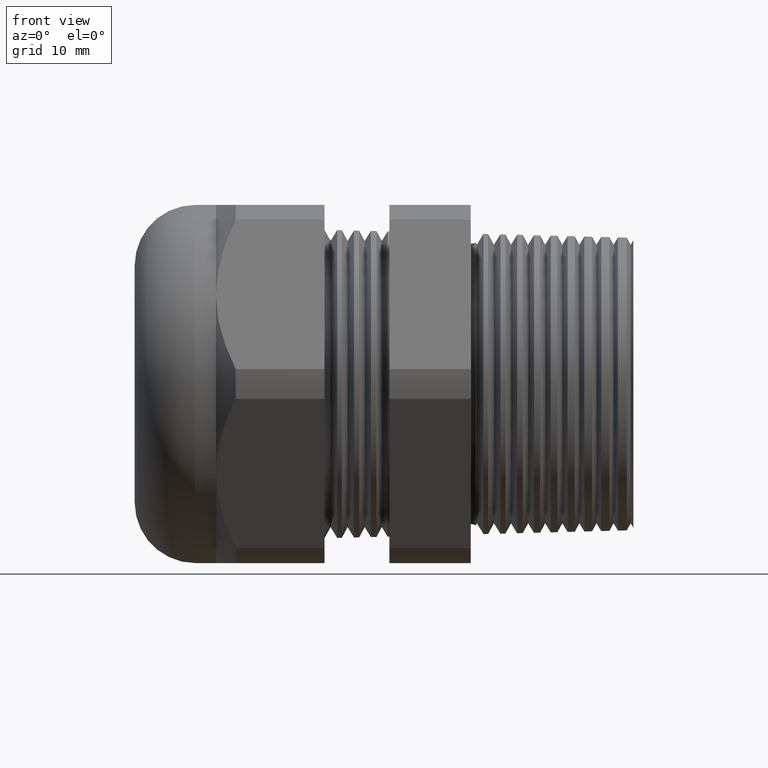
[diagram: clean part render]
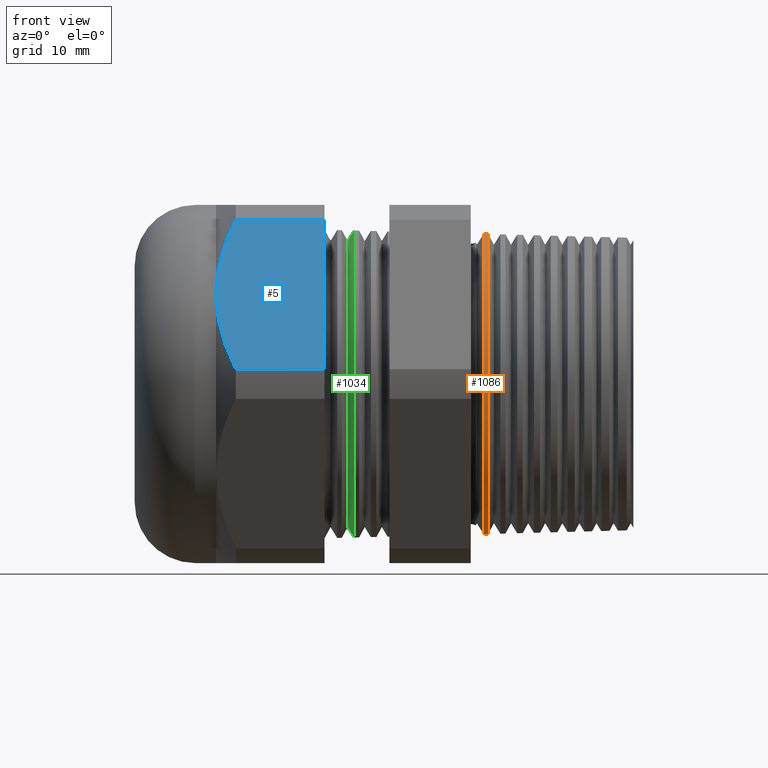
[diagram: same view with three faces highlighted in distinct colors, each labeled with its STEP entity id]
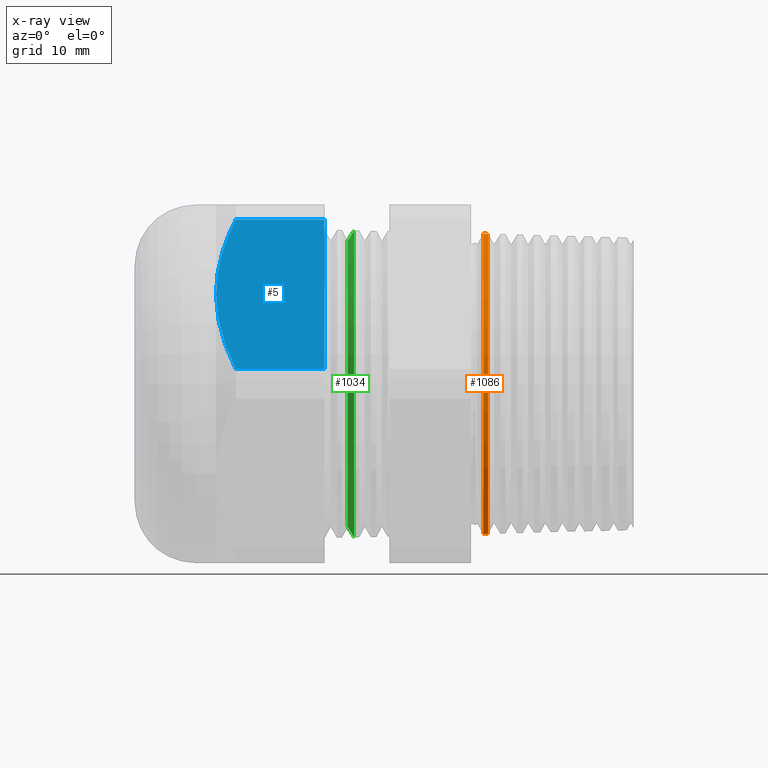
[diagram: x-ray of the same camera — body ghosted, the three highlighted faces saturated]
A machine part, front view with three faces highlighted in distinct colors.
The next image is the same camera in x-ray (body ghosted, the three faces saturated) — at least one of them is partly hidden behind the body in this view.
Their STEP definitions:

[orange] entity #1086 — the highlighted conical surface has half-angle 1.5 deg.
#119 = EDGE_CURVE ( 'NONE', #3682, #3669, #1441, .T. ) ;
#141 = EDGE_CURVE ( 'NONE', #3678, #3665, #1511, .T. ) ;
#1086 = ADVANCED_FACE ( 'NONE', ( #2933 ), #2988, .T. ) ;
#1087 = EDGE_LOOP ( 'NONE', ( #1088, #1089, #1141, #1142 ) ) ;
#1088 = ORIENTED_EDGE ( 'NONE', *, *, #119, .F. ) ;
#1089 = ORIENTED_EDGE ( 'NONE', *, *, #1090, .F. ) ;
#1090 = EDGE_CURVE ( 'NONE', #3678, #3682, #2984, .T. ) ;
#1141 = ORIENTED_EDGE ( 'NONE', *, *, #141, .T. ) ;
#1142 = ORIENTED_EDGE ( 'NONE', *, *, #1143, .T. ) ;
#1143 = EDGE_CURVE ( 'NONE', #3665, #3669, #3051, .T. ) ;
#1440 = CARTESIAN_POINT ( 'NONE',  ( 0.2799999999999999700, 6.498526558574343300E-017, -0.5306449633558729700 ) ) ;
#1441 = LINE ( 'NONE', #1440, #1502 ) ;
#1501 = DIRECTION ( 'NONE',  ( -0.9996573249755573700, 3.205751595667399200E-018, -0.02617694830786614100 ) ) ;
#1502 = VECTOR ( 'NONE', #1501, 39.37007874015748100 ) ;
#1508 = DIRECTION ( 'NONE',  ( -0.9996573249755573700, 0.0000000000000000000, 0.02617694830786614100 ) ) ;
#1509 = VECTOR ( 'NONE', #1508, 39.37007874015748100 ) ;
#1510 = CARTESIAN_POINT ( 'NONE',  ( 0.2799999999999999700, 0.0000000000000000000, 0.5306449633558729700 ) ) ;
#1511 = LINE ( 'NONE', #1510, #1509 ) ;
#2927 = CARTESIAN_POINT ( 'NONE',  ( 0.2799999999999999700, 0.0000000000000000000, 0.0000000000000000000 ) ) ;
#2933 = FACE_OUTER_BOUND ( 'NONE', #1087, .T. ) ;
#2981 = DIRECTION ( 'NONE',  ( 0.0000000000000000000, 0.0000000000000000000, 1.000000000000000000 ) ) ;
#2982 = DIRECTION ( 'NONE',  ( 1.000000000000000000, 0.0000000000000000000, 0.0000000000000000000 ) ) ;
#2983 = AXIS2_PLACEMENT_3D ( 'NONE', #2989, #2982, #2981 ) ;
#2984 = CIRCLE ( 'NONE', #2983, 0.5444477140453289900 ) ;
#2985 = DIRECTION ( 'NONE',  ( 0.0000000000000000000, 0.0000000000000000000, 1.000000000000000000 ) ) ;
#2986 = DIRECTION ( 'NONE',  ( -1.000000000000000000, 0.0000000000000000000, 0.0000000000000000000 ) ) ;
#2987 = AXIS2_PLACEMENT_3D ( 'NONE', #2927, #2986, #2985 ) ;
#2988 = CONICAL_SURFACE ( 'NONE', #2987, 0.5306449633558729700, 0.02617993877990793000 ) ;
#2989 = CARTESIAN_POINT ( 'NONE',  ( -0.2471057828914283200, 0.0000000000000000000, 0.0000000000000000000 ) ) ;
#3047 = DIRECTION ( 'NONE',  ( 0.0000000000000000000, 0.0000000000000000000, -1.000000000000000000 ) ) ;
#3048 = DIRECTION ( 'NONE',  ( 1.000000000000000000, 0.0000000000000000000, 0.0000000000000000000 ) ) ;
#3049 = CARTESIAN_POINT ( 'NONE',  ( -0.2638278059462386700, 0.0000000000000000000, 0.0000000000000000000 ) ) ;
#3050 = AXIS2_PLACEMENT_3D ( 'NONE', #3049, #3048, #3047 ) ;
#3051 = CIRCLE ( 'NONE', #3050, 0.5448855956295204400 ) ;
#3256 = CARTESIAN_POINT ( 'NONE',  ( -0.2638278059462386700, 6.672924005891911200E-017, -0.5448855956295204400 ) ) ;
#3263 = CARTESIAN_POINT ( 'NONE',  ( -0.2638278059462386700, 0.0000000000000000000, 0.5448855956295204400 ) ) ;
#3292 = CARTESIAN_POINT ( 'NONE',  ( -0.2471057828914283200, 6.670242754489484900E-017, -0.5444477140453289900 ) ) ;
#3302 = CARTESIAN_POINT ( 'NONE',  ( -0.2471057828914283200, 0.0000000000000000000, 0.5444477140453289900 ) ) ;
#3665 = VERTEX_POINT ( 'NONE', #3263 ) ;
#3669 = VERTEX_POINT ( 'NONE', #3256 ) ;
#3678 = VERTEX_POINT ( 'NONE', #3302 ) ;
#3682 = VERTEX_POINT ( 'NONE', #3292 ) ;

[blue] entity #5 — the highlighted planar face has unit normal (0, -0.866, 0.5).
#4 = ORIENTED_EDGE ( 'NONE', *, *, #21, .T. ) ;
#5 = ADVANCED_FACE ( 'NONE', ( #1258 ), #1257, .T. ) ;
#13 = ORIENTED_EDGE ( 'NONE', *, *, #53, .F. ) ;
#21 = EDGE_CURVE ( 'NONE', #38, #50, #1316, .T. ) ;
#23 = ORIENTED_EDGE ( 'NONE', *, *, #54, .T. ) ;
#30 = EDGE_LOOP ( 'NONE', ( #40, #23, #4, #13, #72 ) ) ;
#38 = VERTEX_POINT ( 'NONE', #1345 ) ;
#40 = ORIENTED_EDGE ( 'NONE', *, *, #43, .T. ) ;
#43 = EDGE_CURVE ( 'NONE', #47, #52, #1334, .T. ) ;
#47 = VERTEX_POINT ( 'NONE', #1326 ) ;
#48 = VERTEX_POINT ( 'NONE', #1325 ) ;
#50 = VERTEX_POINT ( 'NONE', #1323 ) ;
#52 = VERTEX_POINT ( 'NONE', #1322 ) ;
#53 = EDGE_CURVE ( 'NONE', #48, #50, #1320, .T. ) ;
#54 = EDGE_CURVE ( 'NONE', #52, #38, #1376, .T. ) ;
#71 = EDGE_CURVE ( 'NONE', #47, #48, #1395, .T. ) ;
#72 = ORIENTED_EDGE ( 'NONE', *, *, #71, .F. ) ;
#1253 = DIRECTION ( 'NONE',  ( 0.0000000000000000000, -0.4999999999999996100, -0.8660254037844388200 ) ) ;
#1254 = DIRECTION ( 'NONE',  ( 0.0000000000000000000, -0.8660254037844388200, 0.4999999999999996100 ) ) ;
#1255 = CARTESIAN_POINT ( 'NONE',  ( 0.2800000000000000300, -0.7194909755756819800, 0.05380507471562046700 ) ) ;
#1256 = AXIS2_PLACEMENT_3D ( 'NONE', #1255, #1254, #1253 ) ;
#1257 = PLANE ( 'NONE',  #1256 ) ;
#1258 = FACE_OUTER_BOUND ( 'NONE', #30, .T. ) ;
#1309 = CARTESIAN_POINT ( 'NONE',  ( -1.163224409448818900, -0.7194909755756820900, 0.05380507471562026600 ) ) ;
#1310 = CARTESIAN_POINT ( 'NONE',  ( -1.184872741445236900, -0.6945519286446000300, 0.09700077109259905300 ) ) ;
#1311 = CARTESIAN_POINT ( 'NONE',  ( -1.202996499520028200, -0.6687756690813084800, 0.1416465622853033700 ) ) ;
#1312 = CARTESIAN_POINT ( 'NONE',  ( -1.227884653074518000, -0.6165592345672921100, 0.2320880798536728900 ) ) ;
#1313 = CARTESIAN_POINT ( 'NONE',  ( -1.234724409448818300, -0.5900081318517967900, 0.2780759387538905300 ) ) ;
#1314 = CARTESIAN_POINT ( 'NONE',  ( -1.234724409448819000, -0.5629165124598852800, 0.3249999999999997900 ) ) ;
#1316 = B_SPLINE_CURVE_WITH_KNOTS ( 'NONE', 3,
 ( #1314, #1313, #1312, #1311, #1310, #1309 ),
 .UNSPECIFIED., .F., .F.,
 ( 4, 2, 4 ),
 ( 0.008163776578903781900, 0.01224274182034620200, 0.01632170706178862100 ),
 .UNSPECIFIED. ) ;
#1317 = DIRECTION ( 'NONE',  ( -1.000000000000000000, 0.0000000000000000000, 0.0000000000000000000 ) ) ;
#1318 = VECTOR ( 'NONE', #1317, 39.37007874015748100 ) ;
#1319 = CARTESIAN_POINT ( 'NONE',  ( 0.2800000000000000300, -0.7194909755756820900, 0.05380507471562026600 ) ) ;
#1320 = LINE ( 'NONE', #1319, #1318 ) ;
#1322 = CARTESIAN_POINT ( 'NONE',  ( -1.163224409448819100, -0.4063420493440885700, 0.5961949252843791200 ) ) ;
#1323 = CARTESIAN_POINT ( 'NONE',  ( -1.163224409448818900, -0.7194909755756820900, 0.05380507471562026600 ) ) ;
#1325 = CARTESIAN_POINT ( 'NONE',  ( -0.8410236220472443500, -0.7194909755756820900, 0.05380507471562026600 ) ) ;
#1326 = CARTESIAN_POINT ( 'NONE',  ( -0.8410236220472443500, -0.4063420493440885700, 0.5961949252843791200 ) ) ;
#1331 = DIRECTION ( 'NONE',  ( -1.000000000000000000, 0.0000000000000000000, 0.0000000000000000000 ) ) ;
#1332 = VECTOR ( 'NONE', #1331, 39.37007874015748100 ) ;
#1333 = CARTESIAN_POINT ( 'NONE',  ( 0.2800000000000000300, -0.4063420493440885700, 0.5961949252843791200 ) ) ;
#1334 = LINE ( 'NONE', #1333, #1332 ) ;
#1345 = CARTESIAN_POINT ( 'NONE',  ( -1.234724409448819000, -0.5629165124598852800, 0.3249999999999997900 ) ) ;
#1364 = CARTESIAN_POINT ( 'NONE',  ( -1.234724409448819000, -0.5629165124598852800, 0.3249999999999997900 ) ) ;
#1365 = CARTESIAN_POINT ( 'NONE',  ( -1.234724409448819200, -0.5561389602113053800, 0.3367390648454930400 ) ) ;
#1366 = CARTESIAN_POINT ( 'NONE',  ( -1.234295499348922600, -0.5492994181763347600, 0.3485854991505648600 ) ) ;
#1367 = CARTESIAN_POINT ( 'NONE',  ( -1.232591953151822800, -0.5357104722797961800, 0.3721222438646742400 ) ) ;
#1368 = CARTESIAN_POINT ( 'NONE',  ( -1.231322888010232300, -0.5289679975772969600, 0.3838005526181506600 ) ) ;
#1369 = CARTESIAN_POINT ( 'NONE',  ( -1.226339375409179800, -0.5088871528993772500, 0.4185815958592073400 ) ) ;
#1370 = CARTESIAN_POINT ( 'NONE',  ( -1.221448244131501100, -0.4956954080403316300, 0.4414303681955596400 ) ) ;
#1371 = CARTESIAN_POINT ( 'NONE',  ( -1.202717682382704200, -0.4566257321431002000, 0.5091010318848138100 ) ) ;
#1372 = CARTESIAN_POINT ( 'NONE',  ( -1.184845972670086600, -0.4312502584378785100, 0.5530526416083857400 ) ) ;
#1373 = CARTESIAN_POINT ( 'NONE',  ( -1.163224409448819100, -0.4063420493440885700, 0.5961949252843791200 ) ) ;
#1376 = B_SPLINE_CURVE_WITH_KNOTS ( 'NONE', 3,
 ( #1373, #1372, #1371, #1370, #1369, #1368, #1367, #1366, #1365, #1364 ),
 .UNSPECIFIED., .F., .F.,
 ( 4, 2, 2, 2, 4 ),
 ( 2.483249165352349700E-007, 0.004082012451910162400, 0.006122894515406974300, 0.007143335547155378100, 0.008163776578903781900 ),
 .UNSPECIFIED. ) ;
#1392 = DIRECTION ( 'NONE',  ( 0.0000000000000000000, -0.4999999999999996100, -0.8660254037844388200 ) ) ;
#1393 = VECTOR ( 'NONE', #1392, 39.37007874015748100 ) ;
#1394 = CARTESIAN_POINT ( 'NONE',  ( -0.8410236220472443500, -0.4229165124598854900, 0.5674871130596425000 ) ) ;
#1395 = LINE ( 'NONE', #1394, #1393 ) ;

[green] entity #1034 — the highlighted conical surface has half-angle 58.5 deg.
#376 = VERTEX_POINT ( 'NONE', #1988 ) ;
#397 = VERTEX_POINT ( 'NONE', #2020 ) ;
#415 = EDGE_CURVE ( 'NONE', #720, #397, #2039, .T. ) ;
#419 = EDGE_CURVE ( 'NONE', #721, #376, #2095, .T. ) ;
#720 = VERTEX_POINT ( 'NONE', #2439 ) ;
#721 = VERTEX_POINT ( 'NONE', #2438 ) ;
#1033 = EDGE_CURVE ( 'NONE', #397, #376, #2869, .T. ) ;
#1034 = ADVANCED_FACE ( 'NONE', ( #2925 ), #2924, .T. ) ;
#1035 = EDGE_LOOP ( 'NONE', ( #1036, #1037, #1039, #1040 ) ) ;
#1036 = ORIENTED_EDGE ( 'NONE', *, *, #419, .F. ) ;
#1037 = ORIENTED_EDGE ( 'NONE', *, *, #1038, .T. ) ;
#1038 = EDGE_CURVE ( 'NONE', #721, #720, #2918, .T. ) ;
#1039 = ORIENTED_EDGE ( 'NONE', *, *, #415, .T. ) ;
#1040 = ORIENTED_EDGE ( 'NONE', *, *, #1033, .T. ) ;
#1988 = CARTESIAN_POINT ( 'NONE',  ( -0.7338306139472736700, 0.0000000000000000000, 0.5571930522971296800 ) ) ;
#2020 = CARTESIAN_POINT ( 'NONE',  ( -0.7338306139472736700, 6.823646880028237200E-017, -0.5571930522971296800 ) ) ;
#2036 = DIRECTION ( 'NONE',  ( 0.5224985647159330300, 0.0000000000000000000, -0.8526401643541019500 ) ) ;
#2037 = VECTOR ( 'NONE', #2036, 39.37007874015748100 ) ;
#2038 = CARTESIAN_POINT ( 'NONE',  ( -0.7569846029526777800, 0.0000000000000000000, -0.5194091762748933600 ) ) ;
#2039 = LINE ( 'NONE', #2038, #2037 ) ;
#2092 = DIRECTION ( 'NONE',  ( 0.5224985647159330300, 1.044183048100724100E-016, 0.8526401643541019500 ) ) ;
#2093 = VECTOR ( 'NONE', #2092, 39.37007874015748100 ) ;
#2094 = CARTESIAN_POINT ( 'NONE',  ( -0.7569846029526777800, 6.360927851728115800E-017, 0.5194091762748933600 ) ) ;
#2095 = LINE ( 'NONE', #2094, #2093 ) ;
#2438 = CARTESIAN_POINT ( 'NONE',  ( -0.7569846029526777800, 6.592287365878176500E-017, 0.5194091762748933600 ) ) ;
#2439 = CARTESIAN_POINT ( 'NONE',  ( -0.7569846029526777800, 0.0000000000000000000, -0.5194091762748933600 ) ) ;
#2862 = DIRECTION ( 'NONE',  ( -1.000000000000000000, 0.0000000000000000000, 0.0000000000000000000 ) ) ;
#2863 = CARTESIAN_POINT ( 'NONE',  ( -0.7338306139472736700, 0.0000000000000000000, 0.0000000000000000000 ) ) ;
#2864 = AXIS2_PLACEMENT_3D ( 'NONE', #2863, #2862, #2926 ) ;
#2869 = CIRCLE ( 'NONE', #2864, 0.5571930522971296800 ) ;
#2915 = DIRECTION ( 'NONE',  ( 0.0000000000000000000, 0.0000000000000000000, -1.000000000000000000 ) ) ;
#2916 = DIRECTION ( 'NONE',  ( 1.000000000000000000, 0.0000000000000000000, 0.0000000000000000000 ) ) ;
#2917 = AXIS2_PLACEMENT_3D ( 'NONE', #2923, #2916, #2915 ) ;
#2918 = CIRCLE ( 'NONE', #2917, 0.5194091762748933600 ) ;
#2919 = DIRECTION ( 'NONE',  ( 0.0000000000000000000, 0.0000000000000000000, -1.000000000000000000 ) ) ;
#2920 = DIRECTION ( 'NONE',  ( 1.000000000000000000, 0.0000000000000000000, 0.0000000000000000000 ) ) ;
#2921 = CARTESIAN_POINT ( 'NONE',  ( -0.7569846029526777800, 0.0000000000000000000, 0.0000000000000000000 ) ) ;
#2922 = AXIS2_PLACEMENT_3D ( 'NONE', #2921, #2920, #2919 ) ;
#2923 = CARTESIAN_POINT ( 'NONE',  ( -0.7569846029526777800, 0.0000000000000000000, 0.0000000000000000000 ) ) ;
#2924 = CONICAL_SURFACE ( 'NONE', #2922, 0.5194091762748933600, 1.021017612416701400 ) ;
#2925 = FACE_OUTER_BOUND ( 'NONE', #1035, .T. ) ;
#2926 = DIRECTION ( 'NONE',  ( 0.0000000000000000000, 0.0000000000000000000, -1.000000000000000000 ) ) ;